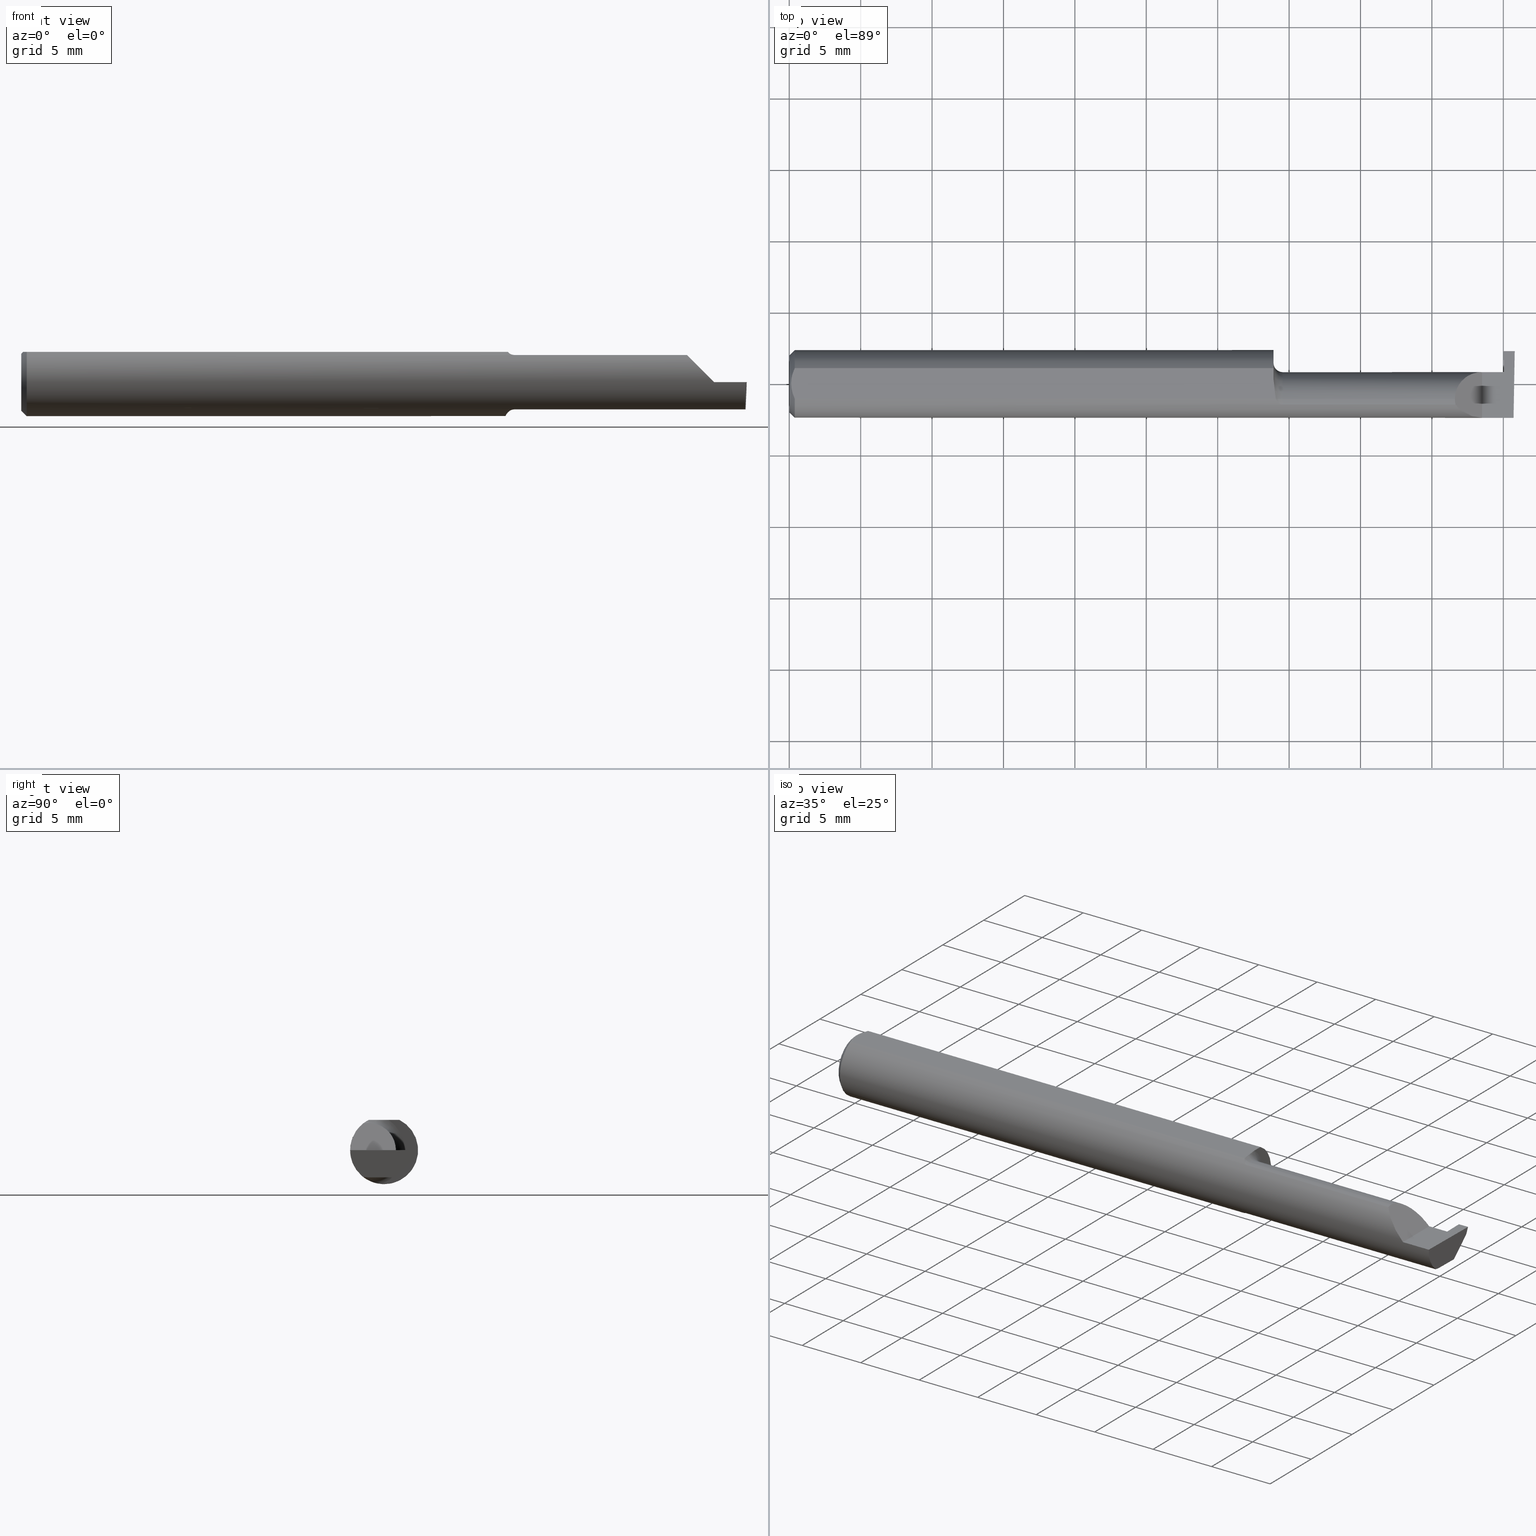
[diagram: canonical four-view strip — front | top / right | iso, engineering-drawing reading convention]
A machine part, canonical four-view strip (front | top / right | iso — engineering-drawing reading convention). The complete STEP part file that produces these views, byte-faithful:
ISO-10303-21;
HEADER;
FILE_DESCRIPTION (( 'STEP AP203' ),
    '1' );
FILE_NAME ('220665-GT030K-10.STEP',
    '2024-07-12T17:36:17',
    ( '' ),
    ( '' ),
    'SwSTEP 2.0',
    'SolidWorks 2024',
    '' );
FILE_SCHEMA (( 'CONFIG_CONTROL_DESIGN' ));
ENDSEC;

DATA;
#1 = AXIS2_PLACEMENT_3D ( 'NONE', #42, #108, #387 ) ;
#2 = EDGE_CURVE ( 'NONE', #194, #638, #14, .T. ) ;
#3 = VERTEX_POINT ( 'NONE', #550 ) ;
#4 = VECTOR ( 'NONE', #466, 39.37007874015748143 ) ;
#5 = DIRECTION ( 'NONE',  ( -1.000000000000000000, -0.000000000000000000, -0.000000000000000000 ) ) ;
#6 = CC_DESIGN_PERSON_AND_ORGANIZATION_ASSIGNMENT ( #755, #101, ( #16 ) ) ;
#7 = EDGE_CURVE ( 'NONE', #507, #112, #250, .T. ) ;
#8 = APPROVAL_PERSON_ORGANIZATION ( #571, #92, #224 ) ;
#9 = CARTESIAN_POINT ( 'NONE',  ( 1.970284083932823727, 0.02994487577554294511, -0.01903262984222201318 ) ) ;
#10 = DIRECTION ( 'NONE',  ( -1.000000000000000000, -0.000000000000000000, -0.000000000000000000 ) ) ;
#11 = CARTESIAN_POINT ( 'NONE',  ( 1.359999999999999654, -0.04259999999999998510, 0.000000000000000000 ) ) ;
#12 = EDGE_LOOP ( 'NONE', ( #314, #359, #731, #624, #186, #643, #385 ) ) ;
#13 = LINE ( 'NONE', #15, #434 ) ;
#14 = LINE ( 'NONE', #609, #146 ) ;
#15 = CARTESIAN_POINT ( 'NONE',  ( 1.999906583493247902, 0.08935513411407894346, -0.002870745427926570548 ) ) ;
#16 = PRODUCT_DEFINITION ( 'UNKNOWN', '', #424, #397 ) ;
#17 = CYLINDRICAL_SURFACE ( 'NONE', #543, 0.07499999999999999722 ) ;
#18 = VECTOR ( 'NONE', #140, 39.37007874015748143 ) ;
#19 = VERTEX_POINT ( 'NONE', #444 ) ;
#20 = CARTESIAN_POINT ( 'NONE',  ( 1.969395642961975890, 0.09132040434161205200, 0.002528790145347100619 ) ) ;
#21 = CARTESIAN_POINT ( 'NONE',  ( 1.969499999999999806, 0.03239999167003616148, -3.534818988850973635E-05 ) ) ;
#22 = EDGE_CURVE ( 'NONE', #152, #436, #742, .T. ) ;
#23 = FACE_OUTER_BOUND ( 'NONE', #766, .T. ) ;
#24 = ADVANCED_FACE ( 'NONE', ( #384 ), #17, .T. ) ;
#25 = CARTESIAN_POINT ( 'NONE',  ( 1.996937940439960757, 0.02748456554894194992, -0.07499999999999998335 ) ) ;
#26 = EDGE_CURVE ( 'NONE', #243, #507, #665, .T. ) ;
#27 = VERTEX_POINT ( 'NONE', #77 ) ;
#28 = SECURITY_CLASSIFICATION_LEVEL ( 'unclassified' ) ;
#29 = FACE_OUTER_BOUND ( 'NONE', #106, .T. ) ;
#30 = CARTESIAN_POINT ( 'NONE',  ( 1.995561922431088098, -0.08091355869144019330, -0.05531953381055033925 ) ) ;
#31 = ORIENTED_EDGE ( 'NONE', *, *, #589, .T. ) ;
#32 = PERSON_AND_ORGANIZATION_ROLE ( 'creator' ) ;
#33 = CARTESIAN_POINT ( 'NONE',  ( 0.01499999999999999944, -0.04209513035969836975, 0.08359999999999999376 ) ) ;
#34 = CARTESIAN_POINT ( 'NONE',  ( 1.996026586675631709, -0.09358669535931163352, -0.02913391928411206838 ) ) ;
#35 = APPROVAL_ROLE ( '' ) ;
#36 = CARTESIAN_POINT ( 'NONE',  ( 1.854690286057537829, -0.08092595952420826577, 0.05530971394246238237 ) ) ;
#37 = DIRECTION ( 'NONE',  ( 0.01742050049977865098, -0.9998482515673751125, -2.130797594925076716E-18 ) ) ;
#38 = ORIENTED_EDGE ( 'NONE', *, *, #52, .T. ) ;
#39 = VECTOR ( 'NONE', #649, 39.37007874015748143 ) ;
#40 = DATE_AND_TIME ( #401, #545 ) ;
#41 = CARTESIAN_POINT ( 'NONE',  ( 1.969499999999999806, 0.03239999167003616148, -3.534818988850973635E-05 ) ) ;
#42 = CARTESIAN_POINT ( 'NONE',  ( 0.000000000000000000, 0.000000000000000000, 0.000000000000000000 ) ) ;
#43 = ORIENTED_EDGE ( 'NONE', *, *, #774, .T. ) ;
#44 = PERSON_AND_ORGANIZATION ( #352, #386 ) ;
#45 = CARTESIAN_POINT ( 'NONE',  ( 1.355389214148234434, -0.05750155061631038317, 0.07386444488392700236 ) ) ;
#46 = CC_DESIGN_APPROVAL ( #92, ( #16 ) ) ;
#47 = CARTESIAN_POINT ( 'NONE',  ( 1.334999999999999520, -0.01308640439514264717, -0.09289765197734373148 ) ) ;
#48 =( BOUNDED_CURVE ( )  B_SPLINE_CURVE ( 3, ( #398, #626, #36, #683 ),
 .UNSPECIFIED., .F., .F. ) 
 B_SPLINE_CURVE_WITH_KNOTS ( ( 4, 4 ),
 ( 4.712388980384689674, 5.613420356061718408 ),
 .UNSPECIFIED. ) 
 CURVE ( )  GEOMETRIC_REPRESENTATION_ITEM ( )  RATIONAL_B_SPLINE_CURVE ( ( 1.000000000000000000, 0.9334817841311876530, 0.9334817841311876530, 1.000000000000000000 ) ) 
 REPRESENTATION_ITEM ( '' )  );
#49 = ORIENTED_EDGE ( 'NONE', *, *, #304, .F. ) ;
#50 = LINE ( 'NONE', #530, #238 ) ;
#51 = CARTESIAN_POINT ( 'NONE',  ( 1.338953896433695112, -0.03733827064844358334, -0.08603332211978831356 ) ) ;
#52 = EDGE_CURVE ( 'NONE', #599, #362, #309, .T. ) ;
#53 = VERTEX_POINT ( 'NONE', #435 ) ;
#54 = PRODUCT ( '220665-GT030K-10', '220665-GT030K-10', '', ( #630 ) ) ;
#55 = DIRECTION ( 'NONE',  ( 1.000000000000000000, 0.000000000000000000, 0.000000000000000000 ) ) ;
#56 = DIRECTION ( 'NONE',  ( 1.000000000000000000, 0.000000000000000000, -0.000000000000000000 ) ) ;
#57 = EDGE_LOOP ( 'NONE', ( #705, #217, #38 ) ) ;
#58 = B_SPLINE_CURVE_WITH_KNOTS ( 'NONE', 3,
 ( #390, #280, #449, #679, #148, #99, #684, #573 ),
 .UNSPECIFIED., .F., .F.,
 ( 4, 2, 2, 4 ),
 ( 1.968126669309311202E-07, 0.0001761966947278606531, 0.0003521965767887903819, 0.0007041963409106363411 ),
 .UNSPECIFIED. ) ;
#59 = CARTESIAN_POINT ( 'NONE',  ( 2.000000000000000000, 0.05599964285600403380, -0.07500000000000002498 ) ) ;
#60 = EDGE_CURVE ( 'NONE', #378, #429, #760, .T. ) ;
#61 = CARTESIAN_POINT ( 'NONE',  ( 1.341356684838558300, -0.04259999999999997816, 0.08334386600104415344 ) ) ;
#62 = AXIS2_PLACEMENT_3D ( 'NONE', #209, #452, #364 ) ;
#63 = ORIENTED_EDGE ( 'NONE', *, *, #173, .T. ) ;
#64 = EDGE_CURVE ( 'NONE', #746, #152, #71, .T. ) ;
#65 = CARTESIAN_POINT ( 'NONE',  ( 1.996678706298551820, -0.09994204647866641866, 4.067411700506801675E-19 ) ) ;
#66 = ORIENTED_EDGE ( 'NONE', *, *, #2, .F. ) ;
#67 = CARTESIAN_POINT ( 'NONE',  ( 1.973215639910378627, 0.02748456554894204706, -0.07499999999999996947 ) ) ;
#68 = EDGE_CURVE ( 'NONE', #554, #650, #502, .T. ) ;
#69 = VECTOR ( 'NONE', #111, 39.37007874015748143 ) ;
#70 = CARTESIAN_POINT ( 'NONE',  ( 0.000000000000000000, 0.000000000000000000, 0.000000000000000000 ) ) ;
#71 =( BOUNDED_CURVE ( )  B_SPLINE_CURVE ( 3, ( #135, #603, #265, #606 ),
 .UNSPECIFIED., .F., .F. ) 
 B_SPLINE_CURVE_WITH_KNOTS ( ( 4, 4 ),
 ( 3.140983202202990654, 4.455205321888862535 ),
 .UNSPECIFIED. ) 
 CURVE ( )  GEOMETRIC_REPRESENTATION_ITEM ( )  RATIONAL_B_SPLINE_CURVE ( ( 1.000000000000000000, 0.8611734602017913076, 0.8611734602017913076, 1.000000000000000000 ) ) 
 REPRESENTATION_ITEM ( '' )  );
#72 = VECTOR ( 'NONE', #661, 39.37007874015748854 ) ;
#73 = CARTESIAN_POINT ( 'NONE',  ( 1.359999999999999654, -0.04259999999999997816, 0.000000000000000000 ) ) ;
#74 = CARTESIAN_POINT ( 'NONE',  ( 1.973215639910378627, 0.03244570701694829418, -0.07499697642507778539 ) ) ;
#75 = ORIENTED_EDGE ( 'NONE', *, *, #144, .F. ) ;
#76 = DIRECTION ( 'NONE',  ( -1.000000000000000000, -0.000000000000000000, -0.000000000000000000 ) ) ;
#77 = CARTESIAN_POINT ( 'NONE',  ( 1.341356684838558300, -0.04259999999999997122, -0.08334386600104412568 ) ) ;
#78 = ORIENTED_EDGE ( 'NONE', *, *, #635, .T. ) ;
#79 = LINE ( 'NONE', #187, #124 ) ;
#80 = AXIS2_PLACEMENT_3D ( 'NONE', #268, #765, #504 ) ;
#81 = CYLINDRICAL_SURFACE ( 'NONE', #445, 0.09359999999999998876 ) ;
#82 = ORIENTED_EDGE ( 'NONE', *, *, #161, .F. ) ;
#83 = DIRECTION ( 'NONE',  ( 0.000000000000000000, 0.000000000000000000, 1.000000000000000000 ) ) ;
#84 = ADVANCED_FACE ( 'NONE', ( #316 ), #677, .F. ) ;
#85 = DIRECTION ( 'NONE',  ( -0.01744642479411312799, -0.9998477995484629233, 3.463134274570152404E-16 ) ) ;
#86 = APPROVAL_PERSON_ORGANIZATION ( #44, #723, #35 ) ;
#87 = EDGE_LOOP ( 'NONE', ( #274, #183, #189, #197, #658 ) ) ;
#88 = VECTOR ( 'NONE', #717, 39.37007874015748854 ) ;
#89 = EDGE_CURVE ( 'NONE', #132, #650, #669, .T. ) ;
#90 = CARTESIAN_POINT ( 'NONE',  ( 0.01499999999999999944, 1.146269404001922621E-17, 0.09359999999999998876 ) ) ;
#91 = CALENDAR_DATE ( 2024, 12, 7 ) ;
#92 = APPROVAL ( #153, 'UNSPECIFIED' ) ;
#93 = DIRECTION ( 'NONE',  ( -0.000000000000000000, 1.000000000000000000, 1.224646799147353207E-16 ) ) ;
#94 = ADVANCED_FACE ( 'NONE', ( #380 ), #81, .T. ) ;
#95 = CARTESIAN_POINT ( 'NONE',  ( 0.004999999999999986226, 1.025183015402604432E-17, 0.08359999999999999376 ) ) ;
#96 = VECTOR ( 'NONE', #226, 39.37007874015748143 ) ;
#97 = EDGE_LOOP ( 'NONE', ( #439, #414, #78, #156 ) ) ;
#98 = CALENDAR_DATE ( 2024, 12, 7 ) ;
#99 = CARTESIAN_POINT ( 'NONE',  ( 1.345264545693809044, -0.04993027844100267343, -0.07924826417278510449 ) ) ;
#100 = ORIENTED_EDGE ( 'NONE', *, *, #223, .T. ) ;
#101 = PERSON_AND_ORGANIZATION_ROLE ( 'creator' ) ;
#102 = CIRCLE ( 'NONE', #777, 0.07499999999999999722 ) ;
#103 = CARTESIAN_POINT ( 'NONE',  ( 1.359999999999999654, -0.04259999999999997122, -0.09999999999999999167 ) ) ;
#104 = AXIS2_PLACEMENT_3D ( 'NONE', #594, #241, #303 ) ;
#105 = CARTESIAN_POINT ( 'NONE',  ( 0.009492654797564226143, 0.02859466010166631864, 0.08360000000000000764 ) ) ;
#106 = EDGE_LOOP ( 'NONE', ( #548, #646, #109, #610 ) ) ;
#107 = CARTESIAN_POINT ( 'NONE',  ( 1.357655343791670077, -0.05810704225352126412, 0.07337936794867815082 ) ) ;
#108 = DIRECTION ( 'NONE',  ( -1.000000000000000000, -0.000000000000000000, -0.000000000000000000 ) ) ;
#109 = ORIENTED_EDGE ( 'NONE', *, *, #52, .F. ) ;
#110 = DATE_TIME_ROLE ( 'creation_date' ) ;
#111 = DIRECTION ( 'NONE',  ( -1.000000000000000000, -0.000000000000000000, -0.000000000000000000 ) ) ;
#112 = VERTEX_POINT ( 'NONE', #553 ) ;
#113 = FACE_OUTER_BOUND ( 'NONE', #570, .T. ) ;
#114 = ADVANCED_FACE ( 'NONE', ( #262 ), #498, .F. ) ;
#115 = CARTESIAN_POINT ( 'NONE',  ( 1.337415450430337494, -0.03151229630690470518, -0.08835846806355296401 ) ) ;
#116 = ORIENTED_EDGE ( 'NONE', *, *, #528, .T. ) ;
#117 = PLANE ( 'NONE',  #365 ) ;
#118 = DIRECTION ( 'NONE',  ( -1.000000000000000000, -0.000000000000000000, -0.000000000000000000 ) ) ;
#119 = ORIENTED_EDGE ( 'NONE', *, *, #22, .F. ) ;
#120 = CARTESIAN_POINT ( 'NONE',  ( 1.995715029210241465, -0.04259999999999997816, -0.07499999999999998335 ) ) ;
#121 = FACE_OUTER_BOUND ( 'NONE', #566, .T. ) ;
#122 = EDGE_LOOP ( 'NONE', ( #207, #535, #666, #427, #175, #734, #459, #475, #294, #395, #778, #255, #171, #551, #49 ) ) ;
#123 = DIRECTION ( 'NONE',  ( 0.05230942393460498441, 0.000000000000000000, -0.9986309249005009825 ) ) ;
#124 = VECTOR ( 'NONE', #315, 39.37007874015748143 ) ;
#125 = ORIENTED_EDGE ( 'NONE', *, *, #412, .T. ) ;
#126 = CARTESIAN_POINT ( 'NONE',  ( 1.334999999999999742, -0.006757276995305157297, -0.09335576686851604356 ) ) ;
#127 = EDGE_LOOP ( 'NONE', ( #179, #159, #116, #329, #511 ) ) ;
#128 =( BOUNDED_CURVE ( )  B_SPLINE_CURVE ( 3, ( #762, #331, #513, #757 ),
 .UNSPECIFIED., .F., .F. ) 
 B_SPLINE_CURVE_WITH_KNOTS ( ( 4, 4 ),
 ( 0.000000000000000000, 1.570796326794896558 ),
 .UNSPECIFIED. ) 
 CURVE ( )  GEOMETRIC_REPRESENTATION_ITEM ( )  RATIONAL_B_SPLINE_CURVE ( ( 1.000000000000000000, 0.8047378541243649375, 0.8047378541243649375, 1.000000000000000000 ) ) 
 REPRESENTATION_ITEM ( '' )  );
#129 = CARTESIAN_POINT ( 'NONE',  ( 1.999381723781206599, 0.08348456554894213844, -0.01900000000000000300 ) ) ;
#130 = VECTOR ( 'NONE', #693, 39.37007874015748143 ) ;
#131 = CARTESIAN_POINT ( 'NONE',  ( 1.334999999999999742, 0.003280657920457268322, 0.08359999999999999376 ) ) ;
#132 = VERTEX_POINT ( 'NONE', #188 ) ;
#133 = DIRECTION ( 'NONE',  ( -0.03874971116600877535, 0.3417632683796886228, 0.9389868626722014389 ) ) ;
#134 = EDGE_CURVE ( 'NONE', #716, #653, #562, .T. ) ;
#135 = CARTESIAN_POINT ( 'NONE',  ( 1.973213402547462803, -0.04260000000000001286, -0.07499999999999998335 ) ) ;
#136 = ORIENTED_EDGE ( 'NONE', *, *, #726, .T. ) ;
#137 = DIRECTION ( 'NONE',  ( -0.03056411404777942264, -0.3418603543644915255, -0.9392536042231929283 ) ) ;
#138 = DIRECTION ( 'NONE',  ( 0.05230943362269508540, 0.0006086169641121964109, -0.9986307389317954364 ) ) ;
#139 = ORIENTED_EDGE ( 'NONE', *, *, #26, .F. ) ;
#140 = DIRECTION ( 'NONE',  ( -0.000000000000000000, 1.000000000000000000, -0.000000000000000000 ) ) ;
#141 = EDGE_CURVE ( 'NONE', #599, #574, #752, .T. ) ;
#142 = AXIS2_PLACEMENT_3D ( 'NONE', #413, #118, #707 ) ;
#143 = CARTESIAN_POINT ( 'NONE',  ( 1.341082007218902916, -0.03301619840524099708, 0.08359999999999997988 ) ) ;
#144 = EDGE_CURVE ( 'NONE', #719, #200, #743, .T. ) ;
#145 = ORIENTED_EDGE ( 'NONE', *, *, #308, .T. ) ;
#146 = VECTOR ( 'NONE', #85, 39.37007874015748854 ) ;
#147 = DIRECTION ( 'NONE',  ( 0.03490478697967554916, 0.000000000000000000, -0.9993906422645267851 ) ) ;
#148 = CARTESIAN_POINT ( 'NONE',  ( 1.349728336617689317, -0.05428341532129051655, -0.07627162539867091140 ) ) ;
#149 = COORDINATED_UNIVERSAL_TIME_OFFSET ( 8, 0, .BEHIND. ) ;
#150 = CARTESIAN_POINT ( 'NONE',  ( 1.343098441794897902, -0.04641417426599061397, 0.08139430652501544738 ) ) ;
#151 = CARTESIAN_POINT ( 'NONE',  ( 1.974734127201016820, 0.09049136203013630197, -0.1499086240528643976 ) ) ;
#152 = VERTEX_POINT ( 'NONE', #519 ) ;
#153 = APPROVAL_STATUS ( 'not_yet_approved' ) ;
#154 = DIRECTION ( 'NONE',  ( 0.000000000000000000, -0.7071067811865487940, -0.7071067811865462405 ) ) ;
#155 = LINE ( 'NONE', #215, #417 ) ;
#156 = ORIENTED_EDGE ( 'NONE', *, *, #134, .F. ) ;
#157 = APPROVAL_ROLE ( '' ) ;
#158 = PLANE ( 'NONE',  #326 ) ;
#159 = ORIENTED_EDGE ( 'NONE', *, *, #310, .F. ) ;
#160 = CARTESIAN_POINT ( 'NONE',  ( 1.359999999999999654, -0.05810704225352114616, 0.07337936794867824797 ) ) ;
#161 = EDGE_CURVE ( 'NONE', #240, #243, #652, .T. ) ;
#162 = PLANE ( 'NONE',  #244 ) ;
#163 = CC_DESIGN_PERSON_AND_ORGANIZATION_ASSIGNMENT ( #741, #32, ( #424 ) ) ;
#164 = EDGE_LOOP ( 'NONE', ( #75, #258, #487, #125, #525 ) ) ;
#165 = VECTOR ( 'NONE', #767, 39.37007874015748143 ) ;
#166 = ADVANCED_FACE ( 'NONE', ( #277 ), #324, .F. ) ;
#167 = CARTESIAN_POINT ( 'NONE',  ( 1.351469028275930739, -0.05559939362423893527, 0.07530665289274068863 ) ) ;
#168 = EDGE_CURVE ( 'NONE', #529, #388, #518, .T. ) ;
#169 = CLOSED_SHELL ( 'NONE', ( #659, #499, #358, #338, #212, #94, #313, #547, #114, #366, #349, #745, #720, #24, #622, #419, #472, #84, #166, #582, #641, #781 ) ) ;
#170 = PLANE ( 'NONE',  #576 ) ;
#171 = ORIENTED_EDGE ( 'NONE', *, *, #286, .F. ) ;
#172 = FACE_OUTER_BOUND ( 'NONE', #288, .T. ) ;
#173 = EDGE_CURVE ( 'NONE', #716, #539, #155, .T. ) ;
#174 = CARTESIAN_POINT ( 'NONE',  ( 1.335436655799338679, -0.01945041057485635827, -0.09177104786119411051 ) ) ;
#175 = ORIENTED_EDGE ( 'NONE', *, *, #141, .F. ) ;
#176 = UNCERTAINTY_MEASURE_WITH_UNIT (LENGTH_MEASURE( 1.000000000000000082E-05 ), #264, 'distance_accuracy_value', 'NONE');
#177 = DIRECTION ( 'NONE',  ( -7.219510806010324627E-16, 0.9999998142845093474, 0.0006094513490878471738 ) ) ;
#178 = FACE_OUTER_BOUND ( 'NONE', #12, .T. ) ;
#179 = ORIENTED_EDGE ( 'NONE', *, *, #196, .F. ) ;
#180 = CIRCLE ( 'NONE', #383, 0.07860000000000001708 ) ;
#181 = CARTESIAN_POINT ( 'NONE',  ( 1.970510542377208685, 0.03240000000000000518, 1.887975845471880136E-17 ) ) ;
#182 = LINE ( 'NONE', #704, #39 ) ;
#183 = ORIENTED_EDGE ( 'NONE', *, *, #203, .T. ) ;
#184 = CARTESIAN_POINT ( 'NONE',  ( 1.996789369178486595, -0.09359999999634724399, 1.727064904157919157E-17 ) ) ;
#185 = LOCAL_TIME ( 10, 36, 17.00000000000000000, #392 ) ;
#186 = ORIENTED_EDGE ( 'NONE', *, *, #281, .T. ) ;
#187 = CARTESIAN_POINT ( 'NONE',  ( 1.334999999999999742, -0.04259999999999997816, -0.07499999999999999722 ) ) ;
#188 = CARTESIAN_POINT ( 'NONE',  ( 1.970284083932823505, 0.03241159854787072775, -0.01903112649442140550 ) ) ;
#189 = ORIENTED_EDGE ( 'NONE', *, *, #506, .F. ) ;
#190 = EDGE_CURVE ( 'NONE', #650, #19, #522, .T. ) ;
#191 = CARTESIAN_POINT ( 'NONE',  ( 1.334999999999999742, -0.04259999999999998510, 0.000000000000000000 ) ) ;
#192 = VECTOR ( 'NONE', #478, 39.37007874015748143 ) ;
#193 = ORIENTED_EDGE ( 'NONE', *, *, #614, .T. ) ;
#194 = VERTEX_POINT ( 'NONE', #25 ) ;
#195 = VECTOR ( 'NONE', #55, 39.37007874015748143 ) ;
#196 = EDGE_CURVE ( 'NONE', #719, #236, #227, .T. ) ;
#197 = ORIENTED_EDGE ( 'NONE', *, *, #68, .T. ) ;
#198 = CARTESIAN_POINT ( 'NONE',  ( 1.995624014772495736, -0.04781600192481529760, -0.07499999999999999722 ) ) ;
#199 = DIRECTION ( 'NONE',  ( -0.7071067811865460184, 0.000000000000000000, 0.7071067811865490160 ) ) ;
#200 = VERTEX_POINT ( 'NONE', #458 ) ;
#201 =( LENGTH_UNIT ( ) NAMED_UNIT ( * ) SI_UNIT ( $, .METRE. ) );
#202 = ORIENTED_EDGE ( 'NONE', *, *, #310, .T. ) ;
#203 = EDGE_CURVE ( 'NONE', #689, #194, #438, .T. ) ;
#204 = CALENDAR_DATE ( 2024, 12, 7 ) ;
#205 = VECTOR ( 'NONE', #37, 39.37007874015748854 ) ;
#206 = CARTESIAN_POINT ( 'NONE',  ( 0.01203648650249646186, 0.03550565407121129141, 0.08359999999999997988 ) ) ;
#207 = ORIENTED_EDGE ( 'NONE', *, *, #161, .T. ) ;
#208 = COORDINATED_UNIVERSAL_TIME_OFFSET ( 8, 0, .BEHIND. ) ;
#209 = CARTESIAN_POINT ( 'NONE',  ( 1.334999999999999742, -0.04259999999999998510, 0.000000000000000000 ) ) ;
#210 = CARTESIAN_POINT ( 'NONE',  ( 0.004999999999999986226, 1.025183015402604432E-17, 0.08359999999999999376 ) ) ;
#211 = VERTEX_POINT ( 'NONE', #510 ) ;
#212 = ADVANCED_FACE ( 'NONE', ( #569 ), #345, .T. ) ;
#213 = DIRECTION ( 'NONE',  ( 1.000000000000000000, 0.000000000000000000, 0.000000000000000000 ) ) ;
#214 = B_SPLINE_CURVE_WITH_KNOTS ( 'NONE', 3,
 ( #469, #642, #416, #592, #768, #405 ),
 .UNSPECIFIED., .F., .F.,
 ( 4, 2, 4 ),
 ( 0.002614097267282502243, 0.003163218599391118095, 0.003712339931499734381 ),
 .UNSPECIFIED. ) ;
#215 = CARTESIAN_POINT ( 'NONE',  ( 1.899999999999999911, 0.09040000000000000813, -3.918869757271545852E-19 ) ) ;
#216 = AXIS2_PLACEMENT_3D ( 'NONE', #272, #514, #744 ) ;
#217 = ORIENTED_EDGE ( 'NONE', *, *, #479, .T. ) ;
#218 = PERSON_AND_ORGANIZATION_ROLE ( 'design_supplier' ) ;
#219 = CARTESIAN_POINT ( 'NONE',  ( 1.899999999999999911, 0.09040000000000000813, -3.918869757271545852E-19 ) ) ;
#220 = LINE ( 'NONE', #462, #442 ) ;
#221 = ORIENTED_EDGE ( 'NONE', *, *, #327, .F. ) ;
#222 = LOCAL_TIME ( 10, 36, 17.00000000000000000, #149 ) ;
#223 = EDGE_CURVE ( 'NONE', #515, #236, #730, .T. ) ;
#224 = APPROVAL_ROLE ( '' ) ;
#225 = VECTOR ( 'NONE', #411, 39.37007874015748143 ) ;
#226 = DIRECTION ( 'NONE',  ( -1.000000000000000000, -7.220189035068029059E-16, 1.224646799147358877E-16 ) ) ;
#227 = LINE ( 'NONE', #90, #714 ) ;
#228 = EDGE_CURVE ( 'NONE', #211, #27, #58, .T. ) ;
#229 = ORIENTED_EDGE ( 'NONE', *, *, #203, .F. ) ;
#230 = LINE ( 'NONE', #289, #96 ) ;
#231 = CARTESIAN_POINT ( 'NONE',  ( 1.341356684838558300, -0.04259999999999997816, 0.08334386600104415344 ) ) ;
#232 = EDGE_LOOP ( 'NONE', ( #263, #493, #480, #712, #578 ) ) ;
#233 = AXIS2_PLACEMENT_3D ( 'NONE', #534, #531, #772 ) ;
#234 = PLANE ( 'NONE',  #104 ) ;
#235 = LINE ( 'NONE', #474, #192 ) ;
#236 = VERTEX_POINT ( 'NONE', #95 ) ;
#237 = CARTESIAN_POINT ( 'NONE',  ( 1.973215639910379959, -1.938747615474559094, -0.07619832307789187187 ) ) ;
#238 = VECTOR ( 'NONE', #771, 39.37007874015748854 ) ;
#239 = DIRECTION ( 'NONE',  ( 0.000000000000000000, -0.000000000000000000, 1.000000000000000000 ) ) ;
#240 = VERTEX_POINT ( 'NONE', #565 ) ;
#241 = DIRECTION ( 'NONE',  ( 0.9991492024194470467, -2.513476157015516165E-05, 0.04124161336352868273 ) ) ;
#242 = CARTESIAN_POINT ( 'NONE',  ( 1.341280153739604630, -0.04243240890922536646, 0.08342952773968857760 ) ) ;
#243 = VERTEX_POINT ( 'NONE', #399 ) ;
#244 = AXIS2_PLACEMENT_3D ( 'NONE', #645, #637, #361 ) ;
#245 = LINE ( 'NONE', #360, #497 ) ;
#246 = AXIS2_PLACEMENT_3D ( 'NONE', #601, #733, #375 ) ;
#247 = ORIENTED_EDGE ( 'NONE', *, *, #368, .F. ) ;
#248 = CARTESIAN_POINT ( 'NONE',  ( 2.000000000000000000, 0.02748456554894193257, -0.07500000000000001110 ) ) ;
#249 = AXIS2_PLACEMENT_3D ( 'NONE', #267, #259, #437 ) ;
#250 = LINE ( 'NONE', #544, #579 ) ;
#251 = EDGE_CURVE ( 'NONE', #746, #554, #628, .T. ) ;
#252 = ORIENTED_EDGE ( 'NONE', *, *, #373, .F. ) ;
#253 = FACE_OUTER_BOUND ( 'NONE', #351, .T. ) ;
#254 = DIRECTION ( 'NONE',  ( -1.000000000000000000, -0.000000000000000000, -0.000000000000000000 ) ) ;
#255 = ORIENTED_EDGE ( 'NONE', *, *, #168, .F. ) ;
#256 = LINE ( 'NONE', #431, #18 ) ;
#257 = DIRECTION ( 'NONE',  ( -1.000000000000000000, -0.000000000000000000, -0.000000000000000000 ) ) ;
#258 = ORIENTED_EDGE ( 'NONE', *, *, #196, .T. ) ;
#259 = DIRECTION ( 'NONE',  ( 1.000000000000000000, 0.000000000000000000, 0.000000000000000000 ) ) ;
#260 =( BOUNDED_CURVE ( )  B_SPLINE_CURVE ( 3, ( #343, #461, #456, #468 ),
 .UNSPECIFIED., .F., .T. ) 
 B_SPLINE_CURVE_WITH_KNOTS ( ( 4, 4 ),
 ( 6.074922494366329140, 6.283185307179586232 ),
 .UNSPECIFIED. ) 
 CURVE ( )  GEOMETRIC_REPRESENTATION_ITEM ( )  RATIONAL_B_SPLINE_CURVE ( ( 1.000000000000000000, 0.9963888149483995926, 0.9963888149483995926, 1.000000000000000000 ) ) 
 REPRESENTATION_ITEM ( '' )  );
#261 = AXIS2_PLACEMENT_3D ( 'NONE', #537, #292, #706 ) ;
#262 = FACE_OUTER_BOUND ( 'NONE', #593, .T. ) ;
#263 = ORIENTED_EDGE ( 'NONE', *, *, #726, .F. ) ;
#264 =( CONVERSION_BASED_UNIT ( 'INCH', #664 ) LENGTH_UNIT ( ) NAMED_UNIT ( #560 ) );
#265 = CARTESIAN_POINT ( 'NONE',  ( 1.972080687037212510, 0.02094495418688687230, -0.05333678008583635916 ) ) ;
#266 = EDGE_LOOP ( 'NONE', ( #541, #496, #450, #782, #520 ) ) ;
#267 = CARTESIAN_POINT ( 'NONE',  ( 1.334999999999999742, 0.1323999999999999622, 0.000000000000000000 ) ) ;
#268 = CARTESIAN_POINT ( 'NONE',  ( 0.01499999999999999944, 0.000000000000000000, 0.000000000000000000 ) ) ;
#269 = ORIENTED_EDGE ( 'NONE', *, *, #60, .T. ) ;
#270 = COORDINATED_UNIVERSAL_TIME_OFFSET ( 8, 0, .BEHIND. ) ;
#271 = CYLINDRICAL_SURFACE ( 'NONE', #62, 0.07499999999999999722 ) ;
#272 = CARTESIAN_POINT ( 'NONE',  ( 1.334999999999999742, 0.000000000000000000, 0.000000000000000000 ) ) ;
#273 = EDGE_CURVE ( 'NONE', #436, #132, #220, .T. ) ;
#274 = ORIENTED_EDGE ( 'NONE', *, *, #373, .T. ) ;
#275 = PERSON_AND_ORGANIZATION ( #352, #386 ) ;
#276 = PLANE ( 'NONE',  #406 ) ;
#277 = FACE_OUTER_BOUND ( 'NONE', #97, .T. ) ;
#278 = CALENDAR_DATE ( 2024, 12, 7 ) ;
#279 = CARTESIAN_POINT ( 'NONE',  ( 1.334999999999999520, 0.01227294415283364248, 0.08359999999999999376 ) ) ;
#280 = CARTESIAN_POINT ( 'NONE',  ( 1.357653034764491506, -0.05810704225352129881, -0.07337936794867813695 ) ) ;
#281 = EDGE_CURVE ( 'NONE', #378, #298, #284, .T. ) ;
#282 = VECTOR ( 'NONE', #758, 39.37007874015748854 ) ;
#283 = SHAPE_DEFINITION_REPRESENTATION ( #709, #371 ) ;
#284 = B_SPLINE_CURVE_WITH_KNOTS ( 'NONE', 3,
 ( #776, #711, #242, #231 ),
 .UNSPECIFIED., .F., .F.,
 ( 4, 4 ),
 ( 4.741820243497488622E-07, 1.584523690453573094E-05 ),
 .UNSPECIFIED. ) ;
#285 = FACE_OUTER_BOUND ( 'NONE', #333, .T. ) ;
#286 = EDGE_CURVE ( 'NONE', #27, #529, #668, .T. ) ;
#287 = CARTESIAN_POINT ( 'NONE',  ( 1.996788249052547481, -0.09359999022555406945, -4.277588313357508156E-05 ) ) ;
#288 = EDGE_LOOP ( 'NONE', ( #633, #769, #484, #418, #381, #221, #400 ) ) ;
#289 = CARTESIAN_POINT ( 'NONE',  ( 2.000000000000000000, 0.03240000000000002600, 1.170704816173023527E-32 ) ) ;
#290 = CARTESIAN_POINT ( 'NONE',  ( 0.000000000000000000, 0.000000000000000000, 0.000000000000000000 ) ) ;
#291 = ORIENTED_EDGE ( 'NONE', *, *, #682, .F. ) ;
#292 = DIRECTION ( 'NONE',  ( -1.000000000000000000, -0.000000000000000000, -0.000000000000000000 ) ) ;
#293 = FACE_OUTER_BOUND ( 'NONE', #127, .T. ) ;
#294 = ORIENTED_EDGE ( 'NONE', *, *, #561, .F. ) ;
#295 = AXIS2_PLACEMENT_3D ( 'NONE', #575, #617, #621 ) ;
#296 = DIRECTION ( 'NONE',  ( -1.224646799147358877E-16, 0.000000000000000000, -1.000000000000000000 ) ) ;
#297 = DIRECTION ( 'NONE',  ( 0.000000000000000000, 0.000000000000000000, 1.000000000000000000 ) ) ;
#298 = VERTEX_POINT ( 'NONE', #61 ) ;
#299 = CARTESIAN_POINT ( 'NONE',  ( 2.000000000000000000, -0.1000000000000000056, 0.000000000000000000 ) ) ;
#300 = CC_DESIGN_PERSON_AND_ORGANIZATION_ASSIGNMENT ( #625, #508, ( #54 ) ) ;
#301 = CARTESIAN_POINT ( 'NONE',  ( 1.334999999999999742, -0.006757276995305157297, -0.09335576686851604356 ) ) ;
#302 = ORIENTED_EDGE ( 'NONE', *, *, #448, .T. ) ;
#303 = DIRECTION ( 'NONE',  ( 0.04124161337655599807, 0.000000000000000000, -0.9991492027350562521 ) ) ;
#304 = EDGE_CURVE ( 'NONE', #240, #211, #357, .T. ) ;
#305 = ORIENTED_EDGE ( 'NONE', *, *, #423, .F. ) ;
#306 = CC_DESIGN_DATE_AND_TIME_ASSIGNMENT ( #447, #516, ( #523 ) ) ;
#307 = LINE ( 'NONE', #65, #88 ) ;
#308 = EDGE_CURVE ( 'NONE', #236, #471, #214, .T. ) ;
#309 = CIRCLE ( 'NONE', #505, 0.07499999999999999722 ) ;
#310 = EDGE_CURVE ( 'NONE', #200, #719, #180, .T. ) ;
#311 = DIRECTION ( 'NONE',  ( 0.000000000000000000, 0.000000000000000000, 1.000000000000000000 ) ) ;
#312 = DIRECTION ( 'NONE',  ( -0.9995051766793262571, 0.01744044634007060196, 0.02617694830739122208 ) ) ;
#313 = ADVANCED_FACE ( 'NONE', ( #482 ), #170, .T. ) ;
#314 = ORIENTED_EDGE ( 'NONE', *, *, #441, .F. ) ;
#315 = DIRECTION ( 'NONE',  ( -1.000000000000000000, -0.000000000000000000, -0.000000000000000000 ) ) ;
#316 = FACE_OUTER_BOUND ( 'NONE', #266, .T. ) ;
#317 = ORIENTED_EDGE ( 'NONE', *, *, #552, .F. ) ;
#318 = CARTESIAN_POINT ( 'NONE',  ( 1.973213402547462803, -0.04260000000000001286, -0.07499999999999998335 ) ) ;
#319 = AXIS2_PLACEMENT_3D ( 'NONE', #151, #339, #147 ) ;
#320 = DIRECTION ( 'NONE',  ( -1.000000000000000000, -0.000000000000000000, -0.000000000000000000 ) ) ;
#321 = AXIS2_PLACEMENT_3D ( 'NONE', #761, #691, #330 ) ;
#322 = CARTESIAN_POINT ( 'NONE',  ( 1.994172072281005459, -0.09355431490906530867, -0.09996576130738767108 ) ) ;
#323 = ORIENTED_EDGE ( 'NONE', *, *, #428, .T. ) ;
#324 = PLANE ( 'NONE',  #319 ) ;
#325 = LINE ( 'NONE', #636, #69 ) ;
#326 = AXIS2_PLACEMENT_3D ( 'NONE', #702, #700, #154 ) ;
#327 = EDGE_CURVE ( 'NONE', #698, #407, #182, .T. ) ;
#328 = CARTESIAN_POINT ( 'NONE',  ( 1.664749999999999730, -0.05810704225352112534, 0.07337936794867826185 ) ) ;
#329 = ORIENTED_EDGE ( 'NONE', *, *, #561, .T. ) ;
#330 = DIRECTION ( 'NONE',  ( 1.000000000000000000, 0.000000000000000000, 0.000000000000000000 ) ) ;
#331 = CARTESIAN_POINT ( 'NONE',  ( 1.835000000000000187, 0.001333982822017879596, 0.07499999999999998335 ) ) ;
#332 = DIRECTION ( 'NONE',  ( 0.7071067811865481278, 8.659560562354925463E-17, 0.7071067811865469066 ) ) ;
#333 = EDGE_LOOP ( 'NONE', ( #63, #391, #252, #685 ) ) ;
#334 = AXIS2_PLACEMENT_3D ( 'NONE', #191, #503, #608 ) ;
#335 = APPLICATION_PROTOCOL_DEFINITION ( 'international standard', 'config_control_design', 1994, #692 ) ;
#336 = APPLICATION_CONTEXT ( 'configuration controlled 3d designs of mechanical parts and assemblies' ) ;
#337 = CARTESIAN_POINT ( 'NONE',  ( 1.341129652885479029, -0.04209513035970091632, 0.08359999999999999376 ) ) ;
#338 = ADVANCED_FACE ( 'NONE', ( #178 ), #483, .F. ) ;
#339 = DIRECTION ( 'NONE',  ( 0.9992391710281356421, 0.01740988840157115664, 0.03489949668475363781 ) ) ;
#340 = ORIENTED_EDGE ( 'NONE', *, *, #501, .T. ) ;
#341 =( BOUNDED_CURVE ( )  B_SPLINE_CURVE ( 3, ( #382, #732, #198, #491 ),
 .UNSPECIFIED., .F., .F. ) 
 B_SPLINE_CURVE_WITH_KNOTS ( ( 4, 4 ),
 ( 0.3794527164476041992, 0.5877155292608622350 ),
 .UNSPECIFIED. ) 
 CURVE ( )  GEOMETRIC_REPRESENTATION_ITEM ( )  RATIONAL_B_SPLINE_CURVE ( ( 1.000000000000000000, 0.9963888149483995926, 0.9963888149483995926, 1.000000000000000000 ) ) 
 REPRESENTATION_ITEM ( '' )  );
#342 = DATE_AND_TIME ( #98, #763 ) ;
#343 = CARTESIAN_POINT ( 'NONE',  ( 1.836620632051322310, -0.05810704225352113922, 0.07337936794867826185 ) ) ;
#344 = CARTESIAN_POINT ( 'NONE',  ( 1.972825615918400111, -0.1004734632187760518, 3.327902248433222370E-18 ) ) ;
#345 = CONICAL_SURFACE ( 'NONE', #80, 0.09359999999999998876, 0.7853981633974473908 ) ;
#346 = ORIENTED_EDGE ( 'NONE', *, *, #494, .F. ) ;
#347 = APPROVAL_DATE_TIME ( #699, #723 ) ;
#348 = CARTESIAN_POINT ( 'NONE',  ( 1.334999999999999742, -0.09360000000000003040, 0.08359999999999999376 ) ) ;
#349 = ADVANCED_FACE ( 'NONE', ( #121 ), #162, .F. ) ;
#350 = DIRECTION ( 'NONE',  ( -1.000000000000000000, -0.000000000000000000, -0.000000000000000000 ) ) ;
#351 = EDGE_LOOP ( 'NONE', ( #586, #136, #317, #247, #302, #464, #674, #119 ) ) ;
#352 = PERSON ( 'UNSPECIFIED', 'UNSPECIFIED', 'UNSPECIFIED', ('UNSPECIFIED'), ('UNSPECIFIED'), ('UNSPECIFIED') ) ;
#353 = DIRECTION ( 'NONE',  ( -0.000000000000000000, 3.463308682636258767E-16, 1.000000000000000000 ) ) ;
#354 = CARTESIAN_POINT ( 'NONE',  ( 1.359999999999999654, -0.04259999999999997816, 0.000000000000000000 ) ) ;
#355 = EDGE_LOOP ( 'NONE', ( #532, #725, #708 ) ) ;
#356 = LINE ( 'NONE', #477, #225 ) ;
#357 = LINE ( 'NONE', #538, #457 ) ;
#358 = ADVANCED_FACE ( 'NONE', ( #409 ), #673, .F. ) ;
#359 = ORIENTED_EDGE ( 'NONE', *, *, #286, .T. ) ;
#360 = CARTESIAN_POINT ( 'NONE',  ( 0.01499999999999999944, 0.000000000000000000, -0.09359999999999998876 ) ) ;
#361 = DIRECTION ( 'NONE',  ( 0.000000000000000000, 0.000000000000000000, -1.000000000000000000 ) ) ;
#362 = VERTEX_POINT ( 'NONE', #588 ) ;
#363 = VECTOR ( 'NONE', #133, 39.37007874015748854 ) ;
#364 = DIRECTION ( 'NONE',  ( 0.000000000000000000, 0.000000000000000000, 1.000000000000000000 ) ) ;
#365 = AXIS2_PLACEMENT_3D ( 'NONE', #237, #710, #123 ) ;
#366 = ADVANCED_FACE ( 'NONE', ( #293 ), #470, .T. ) ;
#367 = ORIENTED_EDGE ( 'NONE', *, *, #228, .T. ) ;
#368 = EDGE_CURVE ( 'NONE', #53, #362, #235, .T. ) ;
#369 = CARTESIAN_POINT ( 'NONE',  ( 2.000000000000000444, 0.09040000000000000813, -4.722041942173579765E-17 ) ) ;
#370 = CARTESIAN_POINT ( 'NONE',  ( 1.970187911046528351, 0.08532170653269689764, -0.01716285901624526114 ) ) ;
#371 = ADVANCED_BREP_SHAPE_REPRESENTATION ( '220665-GT030K-10', ( #567, #321 ), #718 ) ;
#372 = CARTESIAN_POINT ( 'NONE',  ( 1.969499999999999806, 0.09040000000000000813, -3.918869757271545852E-19 ) ) ;
#373 = EDGE_CURVE ( 'NONE', #19, #689, #465, .T. ) ;
#374 = VECTOR ( 'NONE', #739, 39.37007874015748143 ) ;
#375 = DIRECTION ( 'NONE',  ( 0.000000000000000000, 0.0006094513490878464149, -0.9999998142845092364 ) ) ;
#376 = FACE_OUTER_BOUND ( 'NONE', #750, .T. ) ;
#377 = DIRECTION ( 'NONE',  ( -1.000000000000000000, -0.000000000000000000, -0.000000000000000000 ) ) ;
#378 = VERTEX_POINT ( 'NONE', #337 ) ;
#379 = CARTESIAN_POINT ( 'NONE',  ( 1.910000000000000142, 0.03240000000000002600, 1.102182119232621301E-17 ) ) ;
#380 = FACE_OUTER_BOUND ( 'NONE', #122, .T. ) ;
#381 = ORIENTED_EDGE ( 'NONE', *, *, #451, .T. ) ;
#382 = CARTESIAN_POINT ( 'NONE',  ( 1.995486889784650497, -0.05810704225352112534, -0.07337936794867826185 ) ) ;
#383 = AXIS2_PLACEMENT_3D ( 'NONE', #290, #780, #527 ) ;
#384 = FACE_OUTER_BOUND ( 'NONE', #232, .T. ) ;
#385 = ORIENTED_EDGE ( 'NONE', *, *, #552, .T. ) ;
#386 = ORGANIZATION ( 'UNSPECIFIED', 'UNSPECIFIED', '' ) ;
#387 = DIRECTION ( 'NONE',  ( 0.000000000000000000, 0.000000000000000000, 1.000000000000000000 ) ) ;
#388 = VERTEX_POINT ( 'NONE', #526 ) ;
#389 = EDGE_CURVE ( 'NONE', #574, #53, #260, .T. ) ;
#390 = CARTESIAN_POINT ( 'NONE',  ( 1.359999999999999654, -0.05810704225352111146, -0.07337936794867826185 ) ) ;
#391 = ORIENTED_EDGE ( 'NONE', *, *, #682, .T. ) ;
#392 = COORDINATED_UNIVERSAL_TIME_OFFSET ( 8, 0, .BEHIND. ) ;
#393 = CARTESIAN_POINT ( 'NONE',  ( 0.000000000000000000, -0.04209513035969836975, 0.08359999999999999376 ) ) ;
#394 = CARTESIAN_POINT ( 'NONE',  ( 1.970187911046528573, 0.08532170653269677274, -0.01716285901624537910 ) ) ;
#395 = ORIENTED_EDGE ( 'NONE', *, *, #412, .F. ) ;
#396 = COORDINATED_UNIVERSAL_TIME_OFFSET ( 8, 0, .BEHIND. ) ;
#397 = DESIGN_CONTEXT ( 'detailed design', #336, 'design' ) ;
#398 = CARTESIAN_POINT ( 'NONE',  ( 1.910000000000000142, -0.09359999999999998876, 1.102182119232621301E-17 ) ) ;
#399 = CARTESIAN_POINT ( 'NONE',  ( 1.996788249052547481, -0.09359999022555406945, -4.277588313357508156E-05 ) ) ;
#400 = ORIENTED_EDGE ( 'NONE', *, *, #774, .F. ) ;
#401 = CALENDAR_DATE ( 2024, 12, 7 ) ;
#402 = CARTESIAN_POINT ( 'NONE',  ( 1.341356684838558300, -0.04259999999999997816, 0.08334386600104415344 ) ) ;
#403 = DIRECTION ( 'NONE',  ( -0.03084274406794414863, -0.7067703747110382073, -0.7067703747110356538 ) ) ;
#404 = APPROVAL_DATE_TIME ( #747, #92 ) ;
#405 = CARTESIAN_POINT ( 'NONE',  ( 0.01499999999999999944, -0.04209513035969836975, 0.08359999999999999376 ) ) ;
#406 = AXIS2_PLACEMENT_3D ( 'NONE', #219, #748, #687 ) ;
#407 = VERTEX_POINT ( 'NONE', #581 ) ;
#408 = CARTESIAN_POINT ( 'NONE',  ( 1.359999999999999654, -0.05810704225352114616, 0.07337936794867824797 ) ) ;
#409 = FACE_OUTER_BOUND ( 'NONE', #604, .T. ) ;
#410 = ORIENTED_EDGE ( 'NONE', *, *, #2, .T. ) ;
#411 = DIRECTION ( 'NONE',  ( -1.000000000000000000, -0.000000000000000000, -0.000000000000000000 ) ) ;
#412 = EDGE_CURVE ( 'NONE', #515, #3, #662, .T. ) ;
#413 = CARTESIAN_POINT ( 'NONE',  ( 1.359999999999999654, -0.04259999999999997816, 0.000000000000000000 ) ) ;
#414 = ORIENTED_EDGE ( 'NONE', *, *, #190, .F. ) ;
#415 = PLANE ( 'NONE',  #568 ) ;
#416 = CARTESIAN_POINT ( 'NONE',  ( 0.005975039161239316735, -0.01453776427033148973, 0.08360000000000000764 ) ) ;
#417 = VECTOR ( 'NONE', #616, 39.37007874015748143 ) ;
#418 = ORIENTED_EDGE ( 'NONE', *, *, #134, .T. ) ;
#419 = ADVANCED_FACE ( 'NONE', ( #509 ), #158, .F. ) ;
#420 = CARTESIAN_POINT ( 'NONE',  ( 1.359999999999999654, -0.04259999999999997122, -0.07499999999999999722 ) ) ;
#421 = APPROVAL ( #460, 'UNSPECIFIED' ) ;
#422 = ORIENTED_EDGE ( 'NONE', *, *, #556, .T. ) ;
#423 = EDGE_CURVE ( 'NONE', #112, #574, #48, .T. ) ;
#424 = PRODUCT_DEFINITION_FORMATION_WITH_SPECIFIED_SOURCE ( 'ANY', '', #54, .NOT_KNOWN. ) ;
#425 = DIRECTION ( 'NONE',  ( -1.000000000000000000, -0.000000000000000000, -0.000000000000000000 ) ) ;
#426 = AXIS2_PLACEMENT_3D ( 'NONE', #644, #425, #533 ) ;
#427 = ORIENTED_EDGE ( 'NONE', *, *, #423, .T. ) ;
#428 = EDGE_CURVE ( 'NONE', #471, #378, #521, .T. ) ;
#429 = VERTEX_POINT ( 'NONE', #279 ) ;
#430 = CIRCLE ( 'NONE', #740, 0.02500000000000007425 ) ;
#431 = CARTESIAN_POINT ( 'NONE',  ( 1.910000000000000142, -0.1000000000000000056, 1.102182119232621301E-17 ) ) ;
#432 = CARTESIAN_POINT ( 'NONE',  ( 1.341129652885479029, -0.04209513035970091632, 0.08359999999999999376 ) ) ;
#433 = CIRCLE ( 'NONE', #261, 0.09359999999999998876 ) ;
#434 = VECTOR ( 'NONE', #137, 39.37007874015748854 ) ;
#435 = CARTESIAN_POINT ( 'NONE',  ( 1.835000000000000409, -0.04259999999999998510, 0.07499999999999999722 ) ) ;
#436 = VERTEX_POINT ( 'NONE', #41 ) ;
#437 = DIRECTION ( 'NONE',  ( 0.000000000000000000, 0.000000000000000000, -1.000000000000000000 ) ) ;
#438 = LINE ( 'NONE', #688, #648 ) ;
#439 = ORIENTED_EDGE ( 'NONE', *, *, #721, .F. ) ;
#440 = PLANE ( 'NONE',  #678 ) ;
#441 = EDGE_CURVE ( 'NONE', #27, #558, #430, .T. ) ;
#442 = VECTOR ( 'NONE', #696, 39.37007874015748854 ) ;
#443 = CC_DESIGN_PERSON_AND_ORGANIZATION_ASSIGNMENT ( #681, #218, ( #424 ) ) ;
#444 = CARTESIAN_POINT ( 'NONE',  ( 1.970284083932823727, 0.08348456554894213844, -0.01899999999999999953 ) ) ;
#445 = AXIS2_PLACEMENT_3D ( 'NONE', #70, #320, #311 ) ;
#446 = ORIENTED_EDGE ( 'NONE', *, *, #494, .T. ) ;
#447 = DATE_AND_TIME ( #204, #185 ) ;
#448 = EDGE_CURVE ( 'NONE', #53, #698, #128, .T. ) ;
#449 = CARTESIAN_POINT ( 'NONE',  ( 1.355389671955115727, -0.05750350940205801314, -0.07386306649500064270 ) ) ;
#450 = ORIENTED_EDGE ( 'NONE', *, *, #697, .F. ) ;
#451 = EDGE_CURVE ( 'NONE', #653, #407, #230, .T. ) ;
#452 = DIRECTION ( 'NONE',  ( -1.000000000000000000, -0.000000000000000000, -0.000000000000000000 ) ) ;
#453 = CARTESIAN_POINT ( 'NONE',  ( 0.004999999999999977553, 0.007308422719211852582, 0.08359999999999999376 ) ) ;
#454 = ORIENTED_EDGE ( 'NONE', *, *, #251, .F. ) ;
#455 = APPROVAL_STATUS ( 'not_yet_approved' ) ;
#456 = CARTESIAN_POINT ( 'NONE',  ( 1.835000000000000409, -0.04781600192481531147, 0.07499999999999999722 ) ) ;
#457 = VECTOR ( 'NONE', #350, 39.37007874015748143 ) ;
#458 = CARTESIAN_POINT ( 'NONE',  ( 0.000000000000000000, 0.000000000000000000, -0.07860000000000001708 ) ) ;
#459 = ORIENTED_EDGE ( 'NONE', *, *, #281, .F. ) ;
#460 = APPROVAL_STATUS ( 'not_yet_approved' ) ;
#461 = CARTESIAN_POINT ( 'NONE',  ( 1.835542168554754827, -0.05300374992736064245, 0.07445783144524570352 ) ) ;
#462 = CARTESIAN_POINT ( 'NONE',  ( 1.970284083932823727, 0.03241159854787074163, -0.01903112649442139856 ) ) ;
#463 = AXIS2_PLACEMENT_3D ( 'NONE', #73, #76, #735 ) ;
#464 = ORIENTED_EDGE ( 'NONE', *, *, #327, .T. ) ;
#465 = LINE ( 'NONE', #572, #130 ) ;
#466 = DIRECTION ( 'NONE',  ( 1.000000000000000000, 0.000000000000000000, 0.000000000000000000 ) ) ;
#467 = ORIENTED_EDGE ( 'NONE', *, *, #68, .F. ) ;
#468 = CARTESIAN_POINT ( 'NONE',  ( 1.835000000000000409, -0.04259999999999998510, 0.07499999999999999722 ) ) ;
#469 = CARTESIAN_POINT ( 'NONE',  ( 0.004999999999999986226, 1.025183015402604432E-17, 0.08359999999999999376 ) ) ;
#470 = CONICAL_SURFACE ( 'NONE', #233, 0.09359999999999998876, 0.7853981633974473908 ) ;
#471 = VERTEX_POINT ( 'NONE', #33 ) ;
#472 = ADVANCED_FACE ( 'NONE', ( #285 ), #276, .F. ) ;
#473 = DIRECTION ( 'NONE',  ( -1.000000000000000000, -0.000000000000000000, -0.000000000000000000 ) ) ;
#474 = CARTESIAN_POINT ( 'NONE',  ( 1.334999999999999742, -0.04259999999999998510, 0.07499999999999999722 ) ) ;
#475 = ORIENTED_EDGE ( 'NONE', *, *, #428, .F. ) ;
#476 = CIRCLE ( 'NONE', #703, 0.07499999999999999722 ) ;
#477 = CARTESIAN_POINT ( 'NONE',  ( 2.000000000000000000, -0.04259999999999999204, -0.07499999999999998335 ) ) ;
#478 = DIRECTION ( 'NONE',  ( -1.000000000000000000, -0.000000000000000000, -0.000000000000000000 ) ) ;
#479 = EDGE_CURVE ( 'NONE', #298, #599, #770, .T. ) ;
#480 = ORIENTED_EDGE ( 'NONE', *, *, #690, .F. ) ;
#481 = DIRECTION ( 'NONE',  ( 0.7071067811865481278, 0.000000000000000000, -0.7071067811865469066 ) ) ;
#482 = FACE_OUTER_BOUND ( 'NONE', #680, .T. ) ;
#483 = TOROIDAL_SURFACE ( 'NONE', #142, 0.09999999999999999167, 0.02500000000000007425 ) ;
#484 = ORIENTED_EDGE ( 'NONE', *, *, #173, .F. ) ;
#485 = DIRECTION ( 'NONE',  ( 0.000000000000000000, -1.000000000000000000, 0.000000000000000000 ) ) ;
#486 = EDGE_CURVE ( 'NONE', #388, #515, #325, .T. ) ;
#487 = ORIENTED_EDGE ( 'NONE', *, *, #223, .F. ) ;
#488 = LOCAL_TIME ( 10, 36, 17.00000000000000000, #396 ) ;
#489 = CARTESIAN_POINT ( 'NONE',  ( 0.01499999999999999598, 0.04209513035969836975, 0.08359999999999999376 ) ) ;
#490 = CARTESIAN_POINT ( 'NONE',  ( 1.970027797685394821, 0.03157410243558826657, -0.01282266061342995228 ) ) ;
#491 = CARTESIAN_POINT ( 'NONE',  ( 1.995715029210241465, -0.04259999999999997816, -0.07499999999999998335 ) ) ;
#492 = CARTESIAN_POINT ( 'NONE',  ( 1.336463898467977085, -0.005727447913487261622, 0.08359999999999997988 ) ) ;
#493 = ORIENTED_EDGE ( 'NONE', *, *, #501, .F. ) ;
#494 = EDGE_CURVE ( 'NONE', #429, #388, #564, .T. ) ;
#495 = DIRECTION ( 'NONE',  ( 0.000000000000000000, 0.000000000000000000, 1.000000000000000000 ) ) ;
#496 = ORIENTED_EDGE ( 'NONE', *, *, #273, .F. ) ;
#497 = VECTOR ( 'NONE', #481, 39.37007874015748143 ) ;
#498 = PLANE ( 'NONE',  #602 ) ;
#499 = ADVANCED_FACE ( 'NONE', ( #29 ), #271, .T. ) ;
#500 =( NAMED_UNIT ( * ) PLANE_ANGLE_UNIT ( ) SI_UNIT ( $, .RADIAN. ) );
#501 = EDGE_CURVE ( 'NONE', #638, #746, #356, .T. ) ;
#502 = LINE ( 'NONE', #370, #374 ) ;
#503 = DIRECTION ( 'NONE',  ( -1.000000000000000000, -0.000000000000000000, -0.000000000000000000 ) ) ;
#504 = DIRECTION ( 'NONE',  ( 0.000000000000000000, 0.000000000000000000, -1.000000000000000000 ) ) ;
#505 = AXIS2_PLACEMENT_3D ( 'NONE', #11, #377, #495 ) ;
#506 = EDGE_CURVE ( 'NONE', #554, #194, #591, .T. ) ;
#507 = VERTEX_POINT ( 'NONE', #184 ) ;
#508 = PERSON_AND_ORGANIZATION_ROLE ( 'design_owner' ) ;
#509 = FACE_OUTER_BOUND ( 'NONE', #87, .T. ) ;
#510 = CARTESIAN_POINT ( 'NONE',  ( 1.359999999999999654, -0.05810704225352111146, -0.07337936794867826185 ) ) ;
#511 = ORIENTED_EDGE ( 'NONE', *, *, #308, .F. ) ;
#512 = APPROVAL_DATE_TIME ( #40, #421 ) ;
#513 = CARTESIAN_POINT ( 'NONE',  ( 1.866066017177982594, 0.03240000000000000518, 0.04393398282201787380 ) ) ;
#514 = DIRECTION ( 'NONE',  ( 1.000000000000000000, 0.000000000000000000, 0.000000000000000000 ) ) ;
#515 = VERTEX_POINT ( 'NONE', #489 ) ;
#516 = DATE_TIME_ROLE ( 'classification_date' ) ;
#517 = DIRECTION ( 'NONE',  ( 0.000000000000000000, 0.000000000000000000, 1.000000000000000000 ) ) ;
#518 = CIRCLE ( 'NONE', #216, 0.09359999999999998876 ) ;
#519 = CARTESIAN_POINT ( 'NONE',  ( 1.970284083932823727, 0.02994487577554294511, -0.01903262984222201318 ) ) ;
#520 = ORIENTED_EDGE ( 'NONE', *, *, #635, .F. ) ;
#521 = LINE ( 'NONE', #393, #729 ) ;
#522 = LINE ( 'NONE', #394, #754 ) ;
#523 = SECURITY_CLASSIFICATION ( '', '', #28 ) ;
#524 = CC_DESIGN_APPROVAL ( #421, ( #523 ) ) ;
#525 = ORIENTED_EDGE ( 'NONE', *, *, #528, .F. ) ;
#526 = CARTESIAN_POINT ( 'NONE',  ( 1.334999999999999742, 0.04209513035969834893, 0.08359999999999999376 ) ) ;
#527 = DIRECTION ( 'NONE',  ( 0.000000000000000000, 0.000000000000000000, 1.000000000000000000 ) ) ;
#528 = EDGE_CURVE ( 'NONE', #200, #3, #245, .T. ) ;
#529 = VERTEX_POINT ( 'NONE', #126 ) ;
#530 = CARTESIAN_POINT ( 'NONE',  ( 1.975744671832483812, 0.03249136206948450428, -0.1499086886162006860 ) ) ;
#531 = DIRECTION ( 'NONE',  ( 1.000000000000000000, 0.000000000000000000, 0.000000000000000000 ) ) ;
#532 = ORIENTED_EDGE ( 'NONE', *, *, #22, .T. ) ;
#533 = DIRECTION ( 'NONE',  ( 0.000000000000000000, 0.000000000000000000, 1.000000000000000000 ) ) ;
#534 = CARTESIAN_POINT ( 'NONE',  ( 0.01499999999999999944, 0.000000000000000000, 0.000000000000000000 ) ) ;
#535 = ORIENTED_EDGE ( 'NONE', *, *, #26, .T. ) ;
#536 = CIRCLE ( 'NONE', #627, 0.02500000000000007425 ) ;
#537 = CARTESIAN_POINT ( 'NONE',  ( 0.01499999999999999944, 0.000000000000000000, 0.000000000000000000 ) ) ;
#538 = CARTESIAN_POINT ( 'NONE',  ( 1.664749999999999730, -0.05810704225352112534, -0.07337936794867826185 ) ) ;
#539 = VERTEX_POINT ( 'NONE', #369 ) ;
#540 = CARTESIAN_POINT ( 'NONE',  ( 1.359999999999999654, -0.04259999999999997816, 0.09999999999999999167 ) ) ;
#541 = ORIENTED_EDGE ( 'NONE', *, *, #89, .F. ) ;
#542 = CARTESIAN_POINT ( 'NONE',  ( 1.359999999999999654, -0.04259999999999998510, 0.000000000000000000 ) ) ;
#543 = AXIS2_PLACEMENT_3D ( 'NONE', #728, #257, #546 ) ;
#544 = CARTESIAN_POINT ( 'NONE',  ( 2.999519565323743132E-32, -0.09359999999999998876, 2.449293598294717754E-16 ) ) ;
#545 = LOCAL_TIME ( 10, 36, 17.00000000000000000, #270 ) ;
#546 = DIRECTION ( 'NONE',  ( 0.000000000000000000, 0.000000000000000000, 1.000000000000000000 ) ) ;
#547 = ADVANCED_FACE ( 'NONE', ( #172 ), #722, .F. ) ;
#548 = ORIENTED_EDGE ( 'NONE', *, *, #389, .T. ) ;
#549 = LINE ( 'NONE', #20, #363 ) ;
#550 = CARTESIAN_POINT ( 'NONE',  ( 0.01499999999999999944, 0.000000000000000000, -0.09359999999999998876 ) ) ;
#551 = ORIENTED_EDGE ( 'NONE', *, *, #228, .F. ) ;
#552 = EDGE_CURVE ( 'NONE', #362, #558, #695, .T. ) ;
#553 = CARTESIAN_POINT ( 'NONE',  ( 1.910000000000000142, -0.09359999999999998876, 1.102182119232621301E-17 ) ) ;
#554 = VERTEX_POINT ( 'NONE', #67 ) ;
#555 = TOROIDAL_SURFACE ( 'NONE', #463, 0.09999999999999999167, 0.02500000000000007425 ) ;
#556 = EDGE_CURVE ( 'NONE', #429, #529, #764, .T. ) ;
#557 = CARTESIAN_POINT ( 'NONE',  ( 1.334999999999999520, 0.01227294415283364248, 0.08359999999999999376 ) ) ;
#558 = VERTEX_POINT ( 'NONE', #420 ) ;
#559 = CYLINDRICAL_SURFACE ( 'NONE', #334, 0.07499999999999999722 ) ;
#560 = DIMENSIONAL_EXPONENTS ( 1.000000000000000000, 0.000000000000000000, 0.000000000000000000, 0.000000000000000000, 0.000000000000000000, 0.000000000000000000, 0.000000000000000000 ) ;
#561 = EDGE_CURVE ( 'NONE', #3, #471, #433, .T. ) ;
#562 = LINE ( 'NONE', #344, #205 ) ;
#563 = ORIENTED_EDGE ( 'NONE', *, *, #89, .T. ) ;
#564 = LINE ( 'NONE', #348, #165 ) ;
#565 = CARTESIAN_POINT ( 'NONE',  ( 1.995486889784650497, -0.05810704225352112534, -0.07337936794867826185 ) ) ;
#566 = EDGE_LOOP ( 'NONE', ( #202, #670 ) ) ;
#567 = MANIFOLD_SOLID_BREP ( '49FA54BA-E931-4474-AD73-16A9F194FCEC-GAAFaceID8', #169 ) ;
#568 = AXIS2_PLACEMENT_3D ( 'NONE', #59, #353, #647 ) ;
#569 = FACE_OUTER_BOUND ( 'NONE', #164, .T. ) ;
#570 = EDGE_LOOP ( 'NONE', ( #607, #410, #340, #590 ) ) ;
#571 = PERSON_AND_ORGANIZATION ( #352, #386 ) ;
#572 = CARTESIAN_POINT ( 'NONE',  ( 1.899999999999999911, 0.08348456554894213844, -0.01900000000000000300 ) ) ;
#573 = CARTESIAN_POINT ( 'NONE',  ( 1.341356684838558300, -0.04259999999999997122, -0.08334386600104412568 ) ) ;
#574 = VERTEX_POINT ( 'NONE', #779 ) ;
#575 = CARTESIAN_POINT ( 'NONE',  ( 0.01499999999999999944, 0.000000000000000000, 0.000000000000000000 ) ) ;
#576 = AXIS2_PLACEMENT_3D ( 'NONE', #715, #239, #56 ) ;
#577 = DIRECTION ( 'NONE',  ( -0.03699114979479856125, 0.7066228325057372084, 0.7066228325057346549 ) ) ;
#578 = ORIENTED_EDGE ( 'NONE', *, *, #589, .F. ) ;
#579 = VECTOR ( 'NONE', #254, 39.37007874015748143 ) ;
#580 = PERSON_AND_ORGANIZATION ( #352, #386 ) ;
#581 = CARTESIAN_POINT ( 'NONE',  ( 1.969499999999999806, 0.03240000000000001212, 8.143897995945821622E-17 ) ) ;
#582 = ADVANCED_FACE ( 'NONE', ( #656 ), #117, .F. ) ;
#583 = EDGE_CURVE ( 'NONE', #507, #539, #307, .T. ) ;
#584 = DIRECTION ( 'NONE',  ( -1.000000000000000000, -0.000000000000000000, -0.000000000000000000 ) ) ;
#585 = CC_DESIGN_APPROVAL ( #723, ( #424 ) ) ;
#586 = ORIENTED_EDGE ( 'NONE', *, *, #64, .F. ) ;
#587 = DIRECTION ( 'NONE',  ( 0.000000000000000000, 0.000000000000000000, 1.000000000000000000 ) ) ;
#588 = CARTESIAN_POINT ( 'NONE',  ( 1.359999999999999654, -0.04259999999999997816, 0.07499999999999999722 ) ) ;
#589 = EDGE_CURVE ( 'NONE', #558, #211, #102, .T. ) ;
#590 = ORIENTED_EDGE ( 'NONE', *, *, #251, .T. ) ;
#591 = LINE ( 'NONE', #248, #195 ) ;
#592 = CARTESIAN_POINT ( 'NONE',  ( 0.009539353699420717939, -0.02875682547511373283, 0.08359999999999997988 ) ) ;
#593 = EDGE_LOOP ( 'NONE', ( #701, #305, #43, #663 ) ) ;
#594 = CARTESIAN_POINT ( 'NONE',  ( 1.970284083932825281, -1.938781723943636903, -0.02023247314723548851 ) ) ;
#595 = CARTESIAN_POINT ( 'NONE',  ( 1.341356684838558300, -0.04259999999999997122, -0.08334386600104412568 ) ) ;
#596 = ORIENTED_EDGE ( 'NONE', *, *, #64, .T. ) ;
#597 = AXIS2_PLACEMENT_3D ( 'NONE', #651, #473, #600 ) ;
#598 = FACE_OUTER_BOUND ( 'NONE', #355, .T. ) ;
#599 = VERTEX_POINT ( 'NONE', #408 ) ;
#600 = DIRECTION ( 'NONE',  ( 0.000000000000000000, 0.000000000000000000, 1.000000000000000000 ) ) ;
#601 = CARTESIAN_POINT ( 'NONE',  ( 1.975744671832483812, 0.03249136206948450428, -0.1499086886162006860 ) ) ;
#602 = AXIS2_PLACEMENT_3D ( 'NONE', #736, #724, #199 ) ;
#603 = CARTESIAN_POINT ( 'NONE',  ( 1.973214534726833724, -0.007134900077140332759, -0.07499999999999999722 ) ) ;
#604 = EDGE_LOOP ( 'NONE', ( #367, #759, #31 ) ) ;
#605 = CARTESIAN_POINT ( 'NONE',  ( 1.997382703856816377, 0.09044568507411565594, -0.09996573249755573431 ) ) ;
#606 = CARTESIAN_POINT ( 'NONE',  ( 1.970284083932823727, 0.02994487577554294511, -0.01903262984222201318 ) ) ;
#607 = ORIENTED_EDGE ( 'NONE', *, *, #506, .T. ) ;
#608 = DIRECTION ( 'NONE',  ( 0.000000000000000000, 0.000000000000000000, 1.000000000000000000 ) ) ;
#609 = CARTESIAN_POINT ( 'NONE',  ( 1.997436282896842386, 0.05604437736224970185, -0.07500000000000002498 ) ) ;
#610 = ORIENTED_EDGE ( 'NONE', *, *, #141, .T. ) ;
#611 = PLANE ( 'NONE',  #249 ) ;
#612 = CARTESIAN_POINT ( 'NONE',  ( 1.339570820222979686, -0.02392027542784307473, 0.08360000000000000764 ) ) ;
#613 = DIRECTION ( 'NONE',  ( 0.02618093032612054533, 0.000000000000000000, 0.9996572206948034500 ) ) ;
#614 = EDGE_CURVE ( 'NONE', #152, #132, #783, .T. ) ;
#615 = APPROVAL_PERSON_ORGANIZATION ( #275, #421, #157 ) ;
#616 = DIRECTION ( 'NONE',  ( 1.000000000000000000, -0.000000000000000000, -0.000000000000000000 ) ) ;
#617 = DIRECTION ( 'NONE',  ( -1.000000000000000000, -0.000000000000000000, -0.000000000000000000 ) ) ;
#618 = CARTESIAN_POINT ( 'NONE',  ( 1.995486889784650497, -0.05810704225352112534, -0.07337936794867826185 ) ) ;
#619 = ORIENTED_EDGE ( 'NONE', *, *, #583, .F. ) ;
#620 = AXIS2_PLACEMENT_3D ( 'NONE', #354, #584, #297 ) ;
#621 = DIRECTION ( 'NONE',  ( 0.000000000000000000, 0.000000000000000000, 1.000000000000000000 ) ) ;
#622 = ADVANCED_FACE ( 'NONE', ( #113 ), #415, .F. ) ;
#623 = CARTESIAN_POINT ( 'NONE',  ( 1.973216550246185141, 0.05600049788445093241, -0.07500000000000002498 ) ) ;
#624 = ORIENTED_EDGE ( 'NONE', *, *, #60, .F. ) ;
#625 = PERSON_AND_ORGANIZATION ( #352, #386 ) ;
#626 = CARTESIAN_POINT ( 'NONE',  ( 1.880893035518783396, -0.09359999999999998876, 0.02910696448121675300 ) ) ;
#627 = AXIS2_PLACEMENT_3D ( 'NONE', #540, #485, #660 ) ;
#628 = LINE ( 'NONE', #623, #282 ) ;
#629 = EDGE_LOOP ( 'NONE', ( #596, #193, #563, #467, #454 ) ) ;
#630 = MECHANICAL_CONTEXT ( 'NONE', #692, 'mechanical' ) ;
#631 = CARTESIAN_POINT ( 'NONE',  ( 1.349746577633803790, -0.05429945193459818215, 0.07626038032150796175 ) ) ;
#632 = CARTESIAN_POINT ( 'NONE',  ( 0.005981829149300633627, 0.01454044632356571096, 0.08359999999999997988 ) ) ;
#633 = ORIENTED_EDGE ( 'NONE', *, *, #7, .F. ) ;
#634 = PERSON_AND_ORGANIZATION_ROLE ( 'classification_officer' ) ;
#635 = EDGE_CURVE ( 'NONE', #650, #653, #50, .T. ) ;
#636 = CARTESIAN_POINT ( 'NONE',  ( 0.000000000000000000, 0.04209513035969836975, 0.08359999999999999376 ) ) ;
#637 = DIRECTION ( 'NONE',  ( 1.000000000000000000, 0.000000000000000000, 0.000000000000000000 ) ) ;
#638 = VERTEX_POINT ( 'NONE', #120 ) ;
#639 = CC_DESIGN_DATE_AND_TIME_ASSIGNMENT ( #342, #110, ( #16 ) ) ;
#640 = CARTESIAN_POINT ( 'NONE',  ( 1.970284083932825281, -1.938781723943636903, -0.02023247314723548851 ) ) ;
#641 = ADVANCED_FACE ( 'NONE', ( #598 ), #234, .F. ) ;
#642 = CARTESIAN_POINT ( 'NONE',  ( 0.004999999999999974083, -0.007328888879231052096, 0.08359999999999997988 ) ) ;
#643 = ORIENTED_EDGE ( 'NONE', *, *, #657, .T. ) ;
#644 = CARTESIAN_POINT ( 'NONE',  ( 1.334999999999999520, -0.04259999999999998510, 0.000000000000000000 ) ) ;
#645 = CARTESIAN_POINT ( 'NONE',  ( 0.000000000000000000, 0.000000000000000000, 0.000000000000000000 ) ) ;
#646 = ORIENTED_EDGE ( 'NONE', *, *, #368, .T. ) ;
#647 = DIRECTION ( 'NONE',  ( 0.000000000000000000, -1.000000000000000000, 3.463308682636258767E-16 ) ) ;
#648 = VECTOR ( 'NONE', #403, 39.37007874015748854 ) ;
#649 = DIRECTION ( 'NONE',  ( 1.000000000000000000, 0.000000000000000000, 0.000000000000000000 ) ) ;
#650 = VERTEX_POINT ( 'NONE', #713 ) ;
#651 = CARTESIAN_POINT ( 'NONE',  ( 1.359999999999999654, -0.04259999999999998510, 0.000000000000000000 ) ) ;
#652 =( BOUNDED_CURVE ( )  B_SPLINE_CURVE ( 3, ( #618, #30, #34, #287 ),
 .UNSPECIFIED., .F., .F. ) 
 B_SPLINE_CURVE_WITH_KNOTS ( ( 4, 4 ),
 ( 0.08204942185700578317, 0.9826237902196912621 ),
 .UNSPECIFIED. ) 
 CURVE ( )  GEOMETRIC_REPRESENTATION_ITEM ( )  RATIONAL_B_SPLINE_CURVE ( ( 1.000000000000000000, 0.9335481000009943076, 0.9335481000009943076, 1.000000000000000000 ) ) 
 REPRESENTATION_ITEM ( '' )  );
#653 = VERTEX_POINT ( 'NONE', #181 ) ;
#654 = CC_DESIGN_SECURITY_CLASSIFICATION ( #523, ( #424 ) ) ;
#655 = AXIS2_PLACEMENT_3D ( 'NONE', #299, #296, #775 ) ;
#656 = FACE_OUTER_BOUND ( 'NONE', #629, .T. ) ;
#657 = EDGE_CURVE ( 'NONE', #298, #362, #536, .T. ) ;
#658 = ORIENTED_EDGE ( 'NONE', *, *, #190, .T. ) ;
#659 = ADVANCED_FACE ( 'NONE', ( #253 ), #559, .T. ) ;
#660 = DIRECTION ( 'NONE',  ( 0.000000000000000000, 0.000000000000000000, -1.000000000000000000 ) ) ;
#661 = DIRECTION ( 'NONE',  ( 0.02617296143184116158, -0.0004568507411563392279, 0.9996573249755575929 ) ) ;
#662 = CIRCLE ( 'NONE', #295, 0.09359999999999998876 ) ;
#663 = ORIENTED_EDGE ( 'NONE', *, *, #448, .F. ) ;
#664 = LENGTH_MEASURE_WITH_UNIT ( LENGTH_MEASURE( 0.02539999999999999897 ), #201 );
#665 = LINE ( 'NONE', #322, #72 ) ;
#666 = ORIENTED_EDGE ( 'NONE', *, *, #7, .T. ) ;
#667 = VECTOR ( 'NONE', #177, 39.37007874015747433 ) ;
#668 = B_SPLINE_CURVE_WITH_KNOTS ( 'NONE', 3,
 ( #595, #51, #115, #174, #47, #301 ),
 .UNSPECIFIED., .F., .F.,
 ( 4, 2, 4 ),
 ( 0.0007041963409106363411, 0.001193146413573859584, 0.001682096486237082827 ),
 .UNSPECIFIED. ) ;
#669 = LINE ( 'NONE', #74, #676 ) ;
#670 = ORIENTED_EDGE ( 'NONE', *, *, #144, .T. ) ;
#671 = CARTESIAN_POINT ( 'NONE',  ( 1.969499999999999806, -0.04259999999999998510, 0.000000000000000000 ) ) ;
#672 = CARTESIAN_POINT ( 'NONE',  ( 1.969765001967077156, 0.03239696580267937415, -0.006455479666460818902 ) ) ;
#673 = TOROIDAL_SURFACE ( 'NONE', #620, 0.09999999999999999167, 0.02500000000000007425 ) ;
#674 = ORIENTED_EDGE ( 'NONE', *, *, #697, .T. ) ;
#675 =( NAMED_UNIT ( * ) SI_UNIT ( $, .STERADIAN. ) SOLID_ANGLE_UNIT ( ) );
#676 = VECTOR ( 'NONE', #138, 39.37007874015748854 ) ;
#677 = PLANE ( 'NONE',  #246 ) ;
#678 = AXIS2_PLACEMENT_3D ( 'NONE', #605, #312, #613 ) ;
#679 = CARTESIAN_POINT ( 'NONE',  ( 1.351446782524423629, -0.05558685324519236498, -0.07531605361338913895 ) ) ;
#680 = EDGE_LOOP ( 'NONE', ( #323, #269, #446, #753, #100, #145 ) ) ;
#681 = PERSON_AND_ORGANIZATION ( #352, #386 ) ;
#682 = EDGE_CURVE ( 'NONE', #539, #689, #13, .T. ) ;
#683 = CARTESIAN_POINT ( 'NONE',  ( 1.836620632051322310, -0.05810704225352113922, 0.07337936794867826185 ) ) ;
#684 = CARTESIAN_POINT ( 'NONE',  ( 1.343086474849917833, -0.04638796853538176834, -0.08140770120152256151 ) ) ;
#685 = ORIENTED_EDGE ( 'NONE', *, *, #721, .T. ) ;
#686 = APPLICATION_PROTOCOL_DEFINITION ( 'international standard', 'config_control_design', 1994, #336 ) ;
#687 = DIRECTION ( 'NONE',  ( 0.000000000000000000, -0.3420201433256696566, -0.9396926207859079838 ) ) ;
#688 = CARTESIAN_POINT ( 'NONE',  ( 1.999287184445666998, 0.08131816941191072345, -0.02116639613703141104 ) ) ;
#689 = VERTEX_POINT ( 'NONE', #129 ) ;
#690 = EDGE_CURVE ( 'NONE', #240, #638, #341, .T. ) ;
#691 = DIRECTION ( 'NONE',  ( 0.000000000000000000, 0.000000000000000000, 1.000000000000000000 ) ) ;
#692 = APPLICATION_CONTEXT ( 'configuration controlled 3d designs of mechanical parts and assemblies' ) ;
#693 = DIRECTION ( 'NONE',  ( 1.000000000000000000, -0.000000000000000000, -0.000000000000000000 ) ) ;
#694 = PRODUCT_RELATED_PRODUCT_CATEGORY ( 'detail', '', ( #54 ) ) ;
#695 = CIRCLE ( 'NONE', #597, 0.07499999999999999722 ) ;
#696 = DIRECTION ( 'NONE',  ( 0.04124162102273654790, 0.0006089328293544636487, -0.9991490168619624468 ) ) ;
#697 = EDGE_CURVE ( 'NONE', #407, #436, #476, .T. ) ;
#698 = VERTEX_POINT ( 'NONE', #379 ) ;
#699 = DATE_AND_TIME ( #278, #488 ) ;
#700 = DIRECTION ( 'NONE',  ( 0.000000000000000000, -0.7071067811865462405, 0.7071067811865487940 ) ) ;
#701 = ORIENTED_EDGE ( 'NONE', *, *, #389, .F. ) ;
#702 = CARTESIAN_POINT ( 'NONE',  ( 1.899999999999999911, 0.08348456554894213844, -0.01900000000000000300 ) ) ;
#703 = AXIS2_PLACEMENT_3D ( 'NONE', #671, #10, #83 ) ;
#704 = CARTESIAN_POINT ( 'NONE',  ( 1.334999999999999742, 0.03240000000000000518, 8.143901214329938727E-17 ) ) ;
#705 = ORIENTED_EDGE ( 'NONE', *, *, #657, .F. ) ;
#706 = DIRECTION ( 'NONE',  ( 0.000000000000000000, 0.000000000000000000, 1.000000000000000000 ) ) ;
#707 = DIRECTION ( 'NONE',  ( 0.000000000000000000, 0.000000000000000000, 1.000000000000000000 ) ) ;
#708 = ORIENTED_EDGE ( 'NONE', *, *, #614, .F. ) ;
#709 = PRODUCT_DEFINITION_SHAPE ( 'NONE', 'NONE',  #16 ) ;
#710 = DIRECTION ( 'NONE',  ( 0.9986309243930276969, -3.188005489065174990E-05, 0.05230942390802294922 ) ) ;
#711 = CARTESIAN_POINT ( 'NONE',  ( 1.341204482410373933, -0.04226411763296329671, 0.08351490979309549034 ) ) ;
#712 = ORIENTED_EDGE ( 'NONE', *, *, #304, .T. ) ;
#713 = CARTESIAN_POINT ( 'NONE',  ( 1.972956086143512255, 0.03244268712522564019, -0.07004187842367261274 ) ) ;
#714 = VECTOR ( 'NONE', #332, 39.37007874015748143 ) ;
#715 = CARTESIAN_POINT ( 'NONE',  ( 2.000000000000000000, -0.09360000000000003040, 0.08359999999999999376 ) ) ;
#716 = VERTEX_POINT ( 'NONE', #372 ) ;
#717 = DIRECTION ( 'NONE',  ( 0.01744642479411313840, 0.9998477995484629233, -2.135106780035502721E-18 ) ) ;
#718 =( GEOMETRIC_REPRESENTATION_CONTEXT ( 3 ) GLOBAL_UNCERTAINTY_ASSIGNED_CONTEXT ( ( #176 ) ) GLOBAL_UNIT_ASSIGNED_CONTEXT ( ( #264, #500, #675 ) ) REPRESENTATION_CONTEXT ( 'NONE', 'WORKASPACE' ) );
#719 = VERTEX_POINT ( 'NONE', #727 ) ;
#720 = ADVANCED_FACE ( 'NONE', ( #23 ), #611, .T. ) ;
#721 = EDGE_CURVE ( 'NONE', #19, #716, #549, .T. ) ;
#722 = PLANE ( 'NONE',  #655 ) ;
#723 = APPROVAL ( #455, 'UNSPECIFIED' ) ;
#724 = DIRECTION ( 'NONE',  ( -0.7071067811865490160, 0.000000000000000000, -0.7071067811865460184 ) ) ;
#725 = ORIENTED_EDGE ( 'NONE', *, *, #273, .T. ) ;
#726 = EDGE_CURVE ( 'NONE', #746, #558, #79, .T. ) ;
#727 = CARTESIAN_POINT ( 'NONE',  ( 0.000000000000000000, 1.054420894065871180E-17, 0.07860000000000001708 ) ) ;
#728 = CARTESIAN_POINT ( 'NONE',  ( 1.334999999999999742, -0.04259999999999998510, 0.000000000000000000 ) ) ;
#729 = VECTOR ( 'NONE', #213, 39.37007874015748143 ) ;
#730 = B_SPLINE_CURVE_WITH_KNOTS ( 'NONE', 3,
 ( #749, #206, #105, #632, #453, #210 ),
 .UNSPECIFIED., .F., .F.,
 ( 4, 2, 4 ),
 ( 0.001518921481343300838, 0.002066509374312901649, 0.002614097267282502243 ),
 .UNSPECIFIED. ) ;
#731 = ORIENTED_EDGE ( 'NONE', *, *, #556, .F. ) ;
#732 = CARTESIAN_POINT ( 'NONE',  ( 1.995547692684114249, -0.05300374992736063551, -0.07445783144524571739 ) ) ;
#733 = DIRECTION ( 'NONE',  ( 7.219441331523180540E-16, -0.9999998142845093474, -0.0006094513490878465233 ) ) ;
#734 = ORIENTED_EDGE ( 'NONE', *, *, #479, .F. ) ;
#735 = DIRECTION ( 'NONE',  ( 0.000000000000000000, 0.000000000000000000, 1.000000000000000000 ) ) ;
#736 = CARTESIAN_POINT ( 'NONE',  ( 1.910000000000000142, -0.1000000000000000056, 1.102182119232621301E-17 ) ) ;
#737 = ORIENTED_EDGE ( 'NONE', *, *, #690, .T. ) ;
#738 = FACE_OUTER_BOUND ( 'NONE', #57, .T. ) ;
#739 = DIRECTION ( 'NONE',  ( -0.03699114979480102455, 0.7066228325057372084, 0.7066228325057346549 ) ) ;
#740 = AXIS2_PLACEMENT_3D ( 'NONE', #103, #93, #517 ) ;
#741 = PERSON_AND_ORGANIZATION ( #352, #386 ) ;
#742 =( BOUNDED_CURVE ( )  B_SPLINE_CURVE ( 3, ( #9, #490, #672, #21 ),
 .UNSPECIFIED., .F., .T. ) 
 B_SPLINE_CURVE_WITH_KNOTS ( ( 4, 4 ),
 ( 4.455205321888866088, 4.711308219781928486 ),
 .UNSPECIFIED. ) 
 CURVE ( )  GEOMETRIC_REPRESENTATION_ITEM ( )  RATIONAL_B_SPLINE_CURVE ( ( 1.000000000000000000, 0.9945417399294781413, 0.9945417399294781413, 1.000000000000000000 ) ) 
 REPRESENTATION_ITEM ( '' )  );
#743 = CIRCLE ( 'NONE', #1, 0.07860000000000001708 ) ;
#744 = DIRECTION ( 'NONE',  ( 0.000000000000000000, 0.000000000000000000, -1.000000000000000000 ) ) ;
#745 = ADVANCED_FACE ( 'NONE', ( #738 ), #555, .F. ) ;
#746 = VERTEX_POINT ( 'NONE', #318 ) ;
#747 = DATE_AND_TIME ( #91, #222 ) ;
#748 = DIRECTION ( 'NONE',  ( 0.000000000000000000, -0.9396926207859080948, 0.3420201433256697121 ) ) ;
#749 = CARTESIAN_POINT ( 'NONE',  ( 0.01499999999999999598, 0.04209513035969836975, 0.08359999999999999376 ) ) ;
#750 = EDGE_LOOP ( 'NONE', ( #737, #66, #229, #291, #619, #139, #82 ) ) ;
#751 = CARTESIAN_POINT ( 'NONE',  ( 1.345259025420519006, -0.04992838138009422083, 0.07925011723318650669 ) ) ;
#752 = LINE ( 'NONE', #328, #4 ) ;
#753 = ORIENTED_EDGE ( 'NONE', *, *, #486, .T. ) ;
#754 = VECTOR ( 'NONE', #577, 39.37007874015748854 ) ;
#755 = PERSON_AND_ORGANIZATION ( #352, #386 ) ;
#756 = CC_DESIGN_PERSON_AND_ORGANIZATION_ASSIGNMENT ( #580, #634, ( #523 ) ) ;
#757 = CARTESIAN_POINT ( 'NONE',  ( 1.910000000000000142, 0.03240000000000002600, 1.102182119232621301E-17 ) ) ;
#758 = DIRECTION ( 'NONE',  ( 3.192376091677893247E-05, 0.9999999994904366085, -3.463309235184766513E-16 ) ) ;
#759 = ORIENTED_EDGE ( 'NONE', *, *, #441, .T. ) ;
#760 = B_SPLINE_CURVE_WITH_KNOTS ( 'NONE', 3,
 ( #432, #143, #612, #492, #131, #557 ),
 .UNSPECIFIED., .F., .F.,
 ( 4, 2, 4 ),
 ( 0.009672910729349577102, 0.01035804079918434435, 0.01104317086901911160 ),
 .UNSPECIFIED. ) ;
#761 = CARTESIAN_POINT ( 'NONE',  ( 0.000000000000000000, 0.000000000000000000, 0.000000000000000000 ) ) ;
#762 = CARTESIAN_POINT ( 'NONE',  ( 1.835000000000000409, -0.04259999999999998510, 0.07499999999999999722 ) ) ;
#763 = LOCAL_TIME ( 10, 36, 17.00000000000000000, #208 ) ;
#764 = CIRCLE ( 'NONE', #426, 0.09999999999999999167 ) ;
#765 = DIRECTION ( 'NONE',  ( 1.000000000000000000, 0.000000000000000000, 0.000000000000000000 ) ) ;
#766 = EDGE_LOOP ( 'NONE', ( #773, #346, #422 ) ) ;
#767 = DIRECTION ( 'NONE',  ( -0.000000000000000000, 1.000000000000000000, 0.000000000000000000 ) ) ;
#768 = CARTESIAN_POINT ( 'NONE',  ( 0.01206089165507020187, -0.03555991978469316694, 0.08359999999999999376 ) ) ;
#769 = ORIENTED_EDGE ( 'NONE', *, *, #583, .T. ) ;
#770 = B_SPLINE_CURVE_WITH_KNOTS ( 'NONE', 3,
 ( #402, #150, #751, #631, #167, #45, #107, #160 ),
 .UNSPECIFIED., .F., .F.,
 ( 4, 2, 2, 4 ),
 ( 1.584523690453573094E-05, 0.0003656721978374879740, 0.0005405856783039572752, 0.0007154991587704265764 ),
 .UNSPECIFIED. ) ;
#771 = DIRECTION ( 'NONE',  ( -0.03489418134011375294, -0.0006090802009084599154, 0.9993908270190957621 ) ) ;
#772 = DIRECTION ( 'NONE',  ( 0.000000000000000000, 0.000000000000000000, -1.000000000000000000 ) ) ;
#773 = ORIENTED_EDGE ( 'NONE', *, *, #168, .T. ) ;
#774 = EDGE_CURVE ( 'NONE', #112, #698, #256, .T. ) ;
#775 = DIRECTION ( 'NONE',  ( -1.000000000000000000, 0.000000000000000000, 1.224646799147358877E-16 ) ) ;
#776 = CARTESIAN_POINT ( 'NONE',  ( 1.341129652885479029, -0.04209513035970091632, 0.08359999999999999376 ) ) ;
#777 = AXIS2_PLACEMENT_3D ( 'NONE', #542, #5, #587 ) ;
#778 = ORIENTED_EDGE ( 'NONE', *, *, #486, .F. ) ;
#779 = CARTESIAN_POINT ( 'NONE',  ( 1.836620632051322310, -0.05810704225352113922, 0.07337936794867826185 ) ) ;
#780 = DIRECTION ( 'NONE',  ( -1.000000000000000000, -0.000000000000000000, -0.000000000000000000 ) ) ;
#781 = ADVANCED_FACE ( 'NONE', ( #376 ), #440, .F. ) ;
#782 = ORIENTED_EDGE ( 'NONE', *, *, #451, .F. ) ;
#783 = LINE ( 'NONE', #640, #667 ) ;
ENDSEC;
END-ISO-10303-21;
